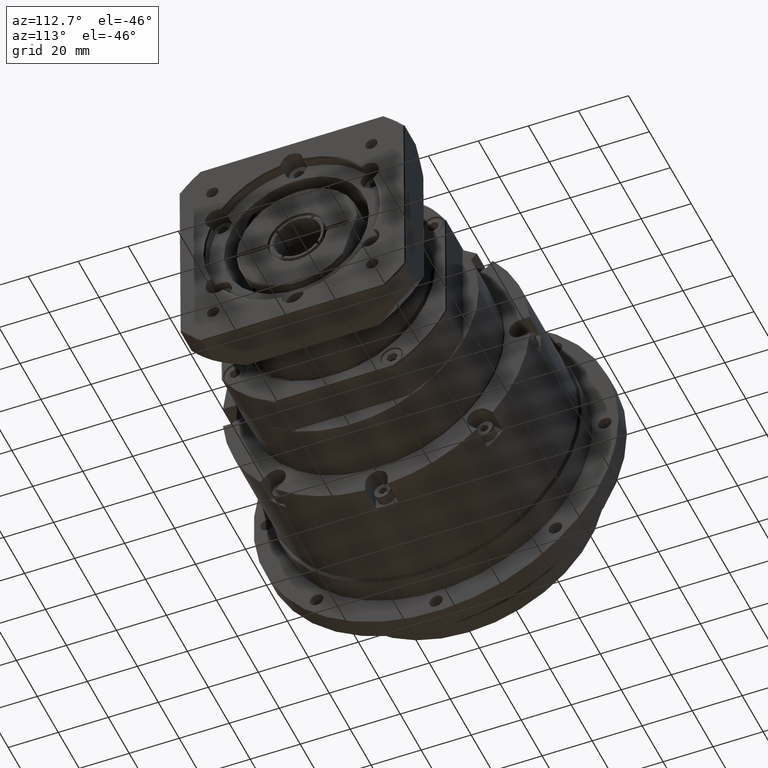
[diagram: clean part render]
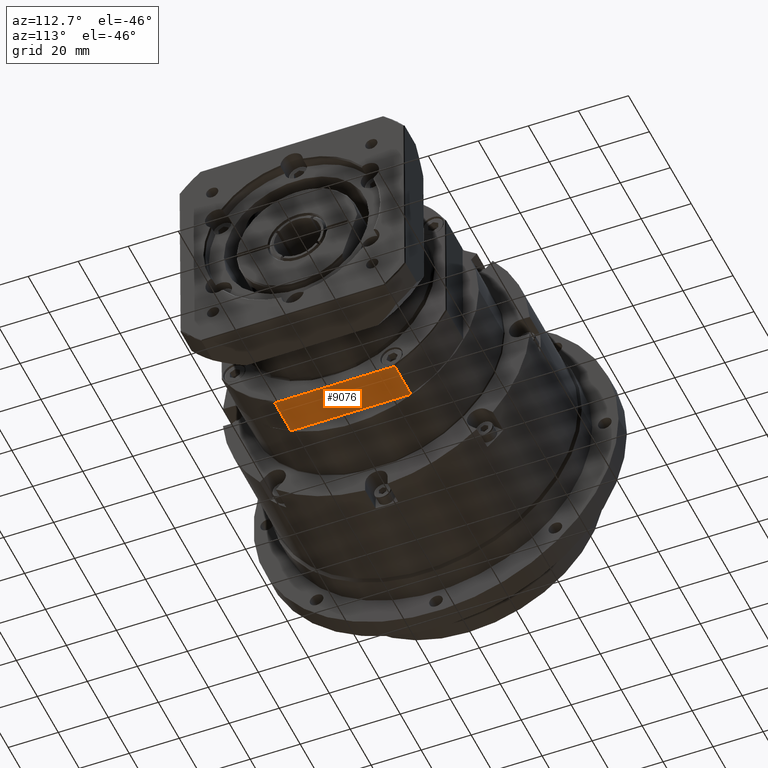
[diagram: same view with one face highlighted and labeled with its STEP entity id]
A machine part, auxiliary view. The second image highlights one B-rep face of the part: STEP entity #9076.
In plain terms, the highlighted planar face has unit normal (-0, 0.0056, -1).
Its self-contained STEP definition (entity closure, byte-faithful):
#597=LINE('',#14715,#1024);
#601=LINE('',#14724,#1028);
#602=LINE('',#14728,#1029);
#603=LINE('',#14729,#1030);
#1024=VECTOR('',#11731,48.0000000000001);
#1028=VECTOR('',#11739,15.5);
#1029=VECTOR('',#11744,15.5);
#1030=VECTOR('',#11745,48.0000000000001);
#1392=PLANE('',#9942);
#2163=FACE_OUTER_BOUND('',#2921,.T.);
#2921=EDGE_LOOP('',(#6901,#6902,#6903,#6904));
#4353=VERTEX_POINT('',#14596);
#4359=VERTEX_POINT('',#14698);
#4362=VERTEX_POINT('',#14723);
#4363=VERTEX_POINT('',#14727);
#5317=EDGE_CURVE('',#4353,#4359,#597,.T.);
#5321=EDGE_CURVE('',#4362,#4359,#601,.T.);
#5323=EDGE_CURVE('',#4353,#4363,#602,.T.);
#5324=EDGE_CURVE('',#4362,#4363,#603,.T.);
#6901=ORIENTED_EDGE('',*,*,#5317,.F.);
#6902=ORIENTED_EDGE('',*,*,#5323,.T.);
#6903=ORIENTED_EDGE('',*,*,#5324,.F.);
#6904=ORIENTED_EDGE('',*,*,#5321,.T.);
#9076=ADVANCED_FACE('',(#2163),#1392,.T.);
#9942=AXIS2_PLACEMENT_3D('',#14726,#11742,#11743);
#11731=DIRECTION('',(1.98943911672892E-16,0.999984292022292,0.00560497178188407));
#11739=DIRECTION('',(1.,-1.9572361659256E-16,-5.75091120521982E-16));
#11742=DIRECTION('center_axis',(-5.73985061655432E-16,0.00560497178188407,
-0.999984292022292));
#11743=DIRECTION('ref_axis',(-3.5527136788005E-16,-0.999984292022292,-0.00560497178188406));
#11744=DIRECTION('',(-1.,1.9572361659256E-16,5.75091120521982E-16));
#11745=DIRECTION('',(-1.98943911672892E-16,-0.999984292022292,-0.00560497178188407));
#14596=CARTESIAN_POINT('',(16.8622571643426,27.0448096251174,-26.0593771000106));
#14698=CARTESIAN_POINT('',(16.8622571643426,75.0440556421875,-25.7903384544802));
#14715=CARTESIAN_POINT('',(16.8622571643426,73.5440792041541,-25.798745912153));
#14723=CARTESIAN_POINT('',(1.36225716434262,75.0440556421875,-25.7903384544802));
#14724=CARTESIAN_POINT('',(17.3622571643426,75.0440556421875,-25.7903384544802));
#14726=CARTESIAN_POINT('Origin',(17.3622571643426,96.0437257746556,-25.6726340470606));
#14727=CARTESIAN_POINT('',(1.36225716434261,27.0448096251175,-26.0593771000106));
#14728=CARTESIAN_POINT('',(17.3622571643426,27.0448096251174,-26.0593771000106));
#14729=CARTESIAN_POINT('',(1.36225716434262,73.5440792041541,-25.798745912153));